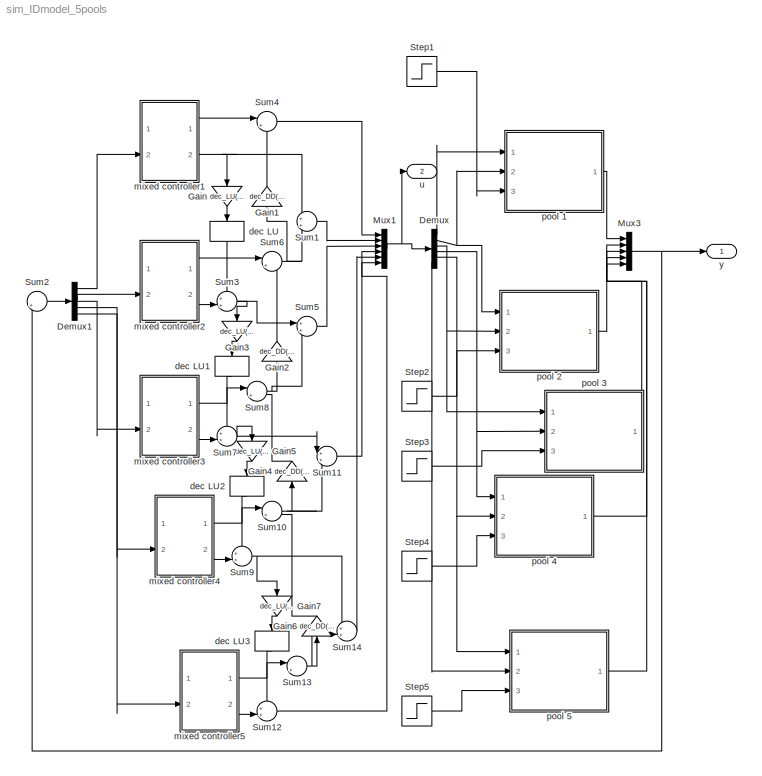
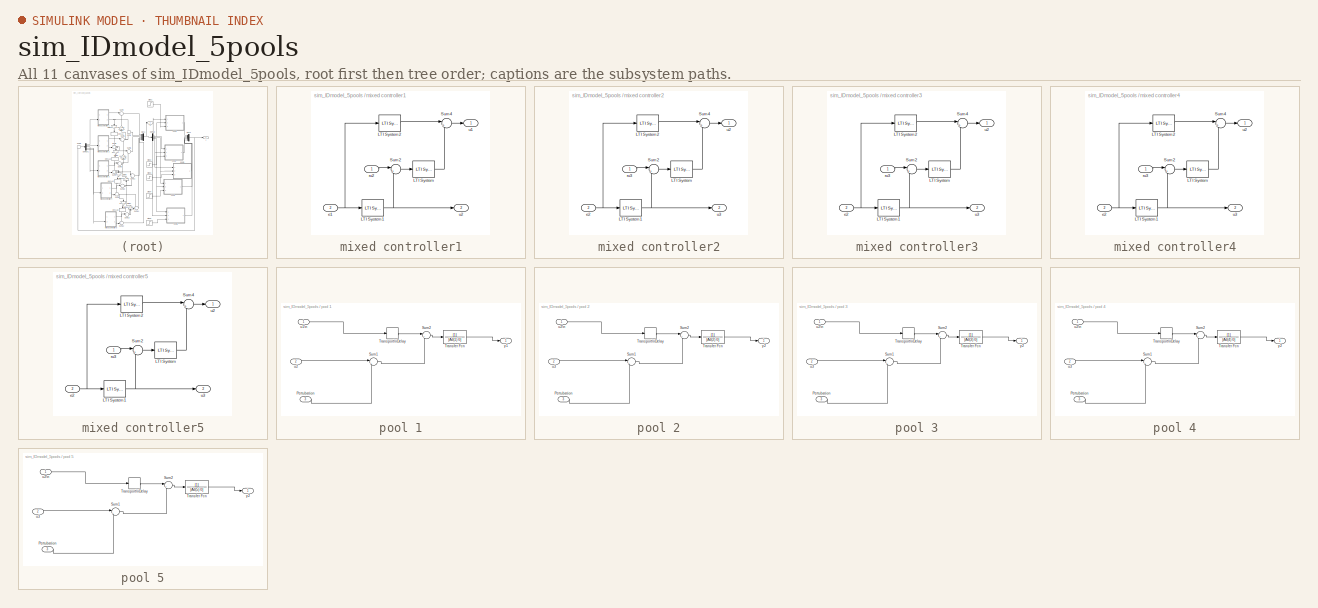
[diagram: thumbnail index - all 11 canvases of the model, root first then tree order]
MODEL sim_IDmodel_5pools
KIND model
BLOCK [Demux] Demux
  DisplayOption = bar
  Outputs = 6
  Ports = [1, 6]
BLOCK [Demux] Demux1
  DisplayOption = bar
  Outputs = 5
  Ports = [1, 5]
BLOCK [Gain] Gain
  Gain = dec_LU(1)
  OutDataTypeMode = Inherit via internal rule
  ParameterDataTypeMode = Inherit via internal rule
  SaturateOnIntegerOverflow = off
BLOCK [Gain] Gain1
  Gain = dec_DD(1)
  OutDataTypeMode = Inherit via internal rule
  ParameterDataTypeMode = Inherit via internal rule
  SaturateOnIntegerOverflow = off
BLOCK [Gain] Gain2
  Gain = dec_DD(2)
  OutDataTypeMode = Inherit via internal rule
  ParameterDataTypeMode = Inherit via internal rule
  SaturateOnIntegerOverflow = off
BLOCK [Gain] Gain3
  Gain = dec_LU(2)
  OutDataTypeMode = Inherit via internal rule
  ParameterDataTypeMode = Inherit via internal rule
  SaturateOnIntegerOverflow = off
BLOCK [Gain] Gain4
  Gain = dec_DD(3)
  OutDataTypeMode = Inherit via internal rule
  ParameterDataTypeMode = Inherit via internal rule
  SaturateOnIntegerOverflow = off
BLOCK [Gain] Gain5
  Gain = dec_LU(3)
  OutDataTypeMode = Inherit via internal rule
  ParameterDataTypeMode = Inherit via internal rule
  SaturateOnIntegerOverflow = off
BLOCK [Gain] Gain6
  Gain = dec_DD(4)
  OutDataTypeMode = Inherit via internal rule
  ParameterDataTypeMode = Inherit via internal rule
  SaturateOnIntegerOverflow = off
BLOCK [Gain] Gain7
  Gain = dec_LU(4)
  OutDataTypeMode = Inherit via internal rule
  ParameterDataTypeMode = Inherit via internal rule
  SaturateOnIntegerOverflow = off
BLOCK [Mux] Mux1
  DisplayOption = bar
  Inputs = 6
  Ports = [6, 1]
BLOCK [Mux] Mux3
  DisplayOption = bar
  Inputs = 5
  Ports = [5, 1]
BLOCK [Step] Step1
  SampleTime = 0
  Time = t_step1
BLOCK [Step] Step2
  SampleTime = 0
  Time = t_step2
BLOCK [Step] Step3
  SampleTime = 0
  Time = t_step3
BLOCK [Step] Step4
  SampleTime = 0
  Time = t_step4
BLOCK [Step] Step5
  SampleTime = 0
  Time = t_step5
BLOCK [Sum] Sum1
  IconShape = round
  Ports = [2, 1]
BLOCK [Sum] Sum10
  IconShape = round
  Inputs = |++
  Ports = [2, 1]
BLOCK [Sum] Sum11
  IconShape = round
  Ports = [2, 1]
BLOCK [Sum] Sum12
  IconShape = round
  Inputs = ++|
  Ports = [2, 1]
BLOCK [Sum] Sum13
  IconShape = round
  Inputs = |++
  Ports = [2, 1]
BLOCK [Sum] Sum14
  IconShape = round
  Ports = [2, 1]
BLOCK [Sum] Sum2
  IconShape = round
  Inputs = |+-
  Ports = [2, 1]
BLOCK [Sum] Sum3
  IconShape = round
  Inputs = ++|
  Ports = [2, 1]
BLOCK [Sum] Sum4
  IconShape = round
  Inputs = |++
  Ports = [2, 1]
BLOCK [Sum] Sum5
  IconShape = round
  Ports = [2, 1]
BLOCK [Sum] Sum6
  IconShape = round
  Inputs = |++
  Ports = [2, 1]
BLOCK [Sum] Sum7
  IconShape = round
  Inputs = ++|
  Ports = [2, 1]
BLOCK [Sum] Sum8
  IconShape = round
  Inputs = |++
  Ports = [2, 1]
BLOCK [Sum] Sum9
  IconShape = round
  Inputs = ++|
  Ports = [2, 1]
BLOCK [TransportDelay] dec LU
  DelayTime = tau(2)
BLOCK [TransportDelay] dec LU1
  DelayTime = tau(3)
BLOCK [TransportDelay] dec LU2
  DelayTime = tau(4)
BLOCK [TransportDelay] dec LU3
  DelayTime = tau(5)
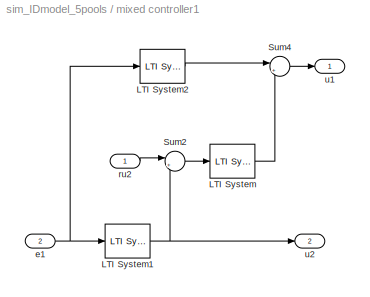
BLOCK [SubSystem] mixed controller1
  MaskHideContents = off
  MinAlgLoopOccurrences = off
  Ports = [2, 2]
  RTWSystemCode = Auto
  TreatAsAtomicUnit = off
BLOCK [Reference] mixed controller1/LTI System  REF=cstblocks/LTI System
  IC = []
  Ports = [1, 1]
  ShowPortLabels = on
  SourceBlock = cstblocks/LTI System
  SourceType = LTI Block
  sys = K1b(1)
BLOCK [Reference] mixed controller1/LTI System1  REF=cstblocks/LTI System
  IC = []
  Ports = [1, 1]
  ShowPortLabels = on
  SourceBlock = cstblocks/LTI System
  SourceType = LTI Block
  sys = K2(1)
BLOCK [Reference] mixed controller1/LTI System2  REF=cstblocks/LTI System
  IC = []
  Ports = [1, 1]
  ShowPortLabels = on
  SourceBlock = cstblocks/LTI System
  SourceType = LTI Block
  sys = K1(1)
BLOCK [Sum] mixed controller1/Sum2
  IconShape = round
  Inputs = |+-
  Ports = [2, 1]
BLOCK [Sum] mixed controller1/Sum4
  IconShape = round
  Inputs = |++
  Ports = [2, 1]
BLOCK [Inport] mixed controller1/e1
  IconDisplay = Port number
  Port = 2
BLOCK [Inport] mixed controller1/ru2
  IconDisplay = Port number
BLOCK [Outport] mixed controller1/u1
  BusOutputAsStruct = off
  IconDisplay = Port number
BLOCK [Outport] mixed controller1/u2
  BusOutputAsStruct = off
  IconDisplay = Port number
  Port = 2
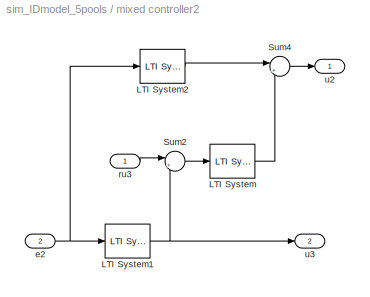
BLOCK [SubSystem] mixed controller2
  MaskHideContents = off
  MinAlgLoopOccurrences = off
  Ports = [2, 2]
  RTWSystemCode = Auto
  TreatAsAtomicUnit = off
BLOCK [Reference] mixed controller2/LTI System  REF=cstblocks/LTI System
  IC = []
  Ports = [1, 1]
  ShowPortLabels = on
  SourceBlock = cstblocks/LTI System
  SourceType = LTI Block
  sys = K1b(2)
BLOCK [Reference] mixed controller2/LTI System1  REF=cstblocks/LTI System
  IC = []
  Ports = [1, 1]
  ShowPortLabels = on
  SourceBlock = cstblocks/LTI System
  SourceType = LTI Block
  sys = K2(2)
BLOCK [Reference] mixed controller2/LTI System2  REF=cstblocks/LTI System
  IC = []
  Ports = [1, 1]
  ShowPortLabels = on
  SourceBlock = cstblocks/LTI System
  SourceType = LTI Block
  sys = K1(2)
BLOCK [Sum] mixed controller2/Sum2
  IconShape = round
  Inputs = |+-
  Ports = [2, 1]
BLOCK [Sum] mixed controller2/Sum4
  IconShape = round
  Inputs = |++
  Ports = [2, 1]
BLOCK [Inport] mixed controller2/e2
  IconDisplay = Port number
  Port = 2
BLOCK [Inport] mixed controller2/ru3
  IconDisplay = Port number
BLOCK [Outport] mixed controller2/u2
  BusOutputAsStruct = off
  IconDisplay = Port number
BLOCK [Outport] mixed controller2/u3
  BusOutputAsStruct = off
  IconDisplay = Port number
  Port = 2
BLOCK [SubSystem] mixed controller3
  MaskHideContents = off
  MinAlgLoopOccurrences = off
  Ports = [2, 2]
  RTWSystemCode = Auto
  TreatAsAtomicUnit = off
BLOCK [Reference] mixed controller3/LTI System  REF=cstblocks/LTI System
  IC = []
  Ports = [1, 1]
  ShowPortLabels = on
  SourceBlock = cstblocks/LTI System
  SourceType = LTI Block
  sys = K1b(3)
BLOCK [Reference] mixed controller3/LTI System1  REF=cstblocks/LTI System
  IC = []
  Ports = [1, 1]
  ShowPortLabels = on
  SourceBlock = cstblocks/LTI System
  SourceType = LTI Block
  sys = K2(3)
BLOCK [Reference] mixed controller3/LTI System2  REF=cstblocks/LTI System
  IC = []
  Ports = [1, 1]
  ShowPortLabels = on
  SourceBlock = cstblocks/LTI System
  SourceType = LTI Block
  sys = K1(3)
BLOCK [Sum] mixed controller3/Sum2
  IconShape = round
  Inputs = |+-
  Ports = [2, 1]
BLOCK [Sum] mixed controller3/Sum4
  IconShape = round
  Inputs = |++
  Ports = [2, 1]
BLOCK [Inport] mixed controller3/e2
  IconDisplay = Port number
  Port = 2
BLOCK [Inport] mixed controller3/ru3
  IconDisplay = Port number
BLOCK [Outport] mixed controller3/u2
  BusOutputAsStruct = off
  IconDisplay = Port number
BLOCK [Outport] mixed controller3/u3
  BusOutputAsStruct = off
  IconDisplay = Port number
  Port = 2
BLOCK [SubSystem] mixed controller4
  MaskHideContents = off
  MinAlgLoopOccurrences = off
  Ports = [2, 2]
  RTWSystemCode = Auto
  TreatAsAtomicUnit = off
BLOCK [Reference] mixed controller4/LTI System  REF=cstblocks/LTI System
  IC = []
  Ports = [1, 1]
  ShowPortLabels = on
  SourceBlock = cstblocks/LTI System
  SourceType = LTI Block
  sys = K1b(4)
BLOCK [Reference] mixed controller4/LTI System1  REF=cstblocks/LTI System
  IC = []
  Ports = [1, 1]
  ShowPortLabels = on
  SourceBlock = cstblocks/LTI System
  SourceType = LTI Block
  sys = K2(4)
BLOCK [Reference] mixed controller4/LTI System2  REF=cstblocks/LTI System
  IC = []
  Ports = [1, 1]
  ShowPortLabels = on
  SourceBlock = cstblocks/LTI System
  SourceType = LTI Block
  sys = K1(4)
BLOCK [Sum] mixed controller4/Sum2
  IconShape = round
  Inputs = |+-
  Ports = [2, 1]
BLOCK [Sum] mixed controller4/Sum4
  IconShape = round
  Inputs = |++
  Ports = [2, 1]
BLOCK [Inport] mixed controller4/e2
  IconDisplay = Port number
  Port = 2
BLOCK [Inport] mixed controller4/ru3
  IconDisplay = Port number
BLOCK [Outport] mixed controller4/u2
  BusOutputAsStruct = off
  IconDisplay = Port number
BLOCK [Outport] mixed controller4/u3
  BusOutputAsStruct = off
  IconDisplay = Port number
  Port = 2
BLOCK [SubSystem] mixed controller5
  MaskHideContents = off
  MinAlgLoopOccurrences = off
  Ports = [2, 2]
  RTWSystemCode = Auto
  TreatAsAtomicUnit = off
BLOCK [Reference] mixed controller5/LTI System  REF=cstblocks/LTI System
  IC = []
  Ports = [1, 1]
  ShowPortLabels = on
  SourceBlock = cstblocks/LTI System
  SourceType = LTI Block
  sys = K1b(5)
BLOCK [Reference] mixed controller5/LTI System1  REF=cstblocks/LTI System
  IC = []
  Ports = [1, 1]
  ShowPortLabels = on
  SourceBlock = cstblocks/LTI System
  SourceType = LTI Block
  sys = K2(5)
BLOCK [Reference] mixed controller5/LTI System2  REF=cstblocks/LTI System
  IC = []
  Ports = [1, 1]
  ShowPortLabels = on
  SourceBlock = cstblocks/LTI System
  SourceType = LTI Block
  sys = K1(5)
BLOCK [Sum] mixed controller5/Sum2
  IconShape = round
  Inputs = |+-
  Ports = [2, 1]
BLOCK [Sum] mixed controller5/Sum4
  IconShape = round
  Inputs = |++
  Ports = [2, 1]
BLOCK [Inport] mixed controller5/e2
  IconDisplay = Port number
  Port = 2
BLOCK [Inport] mixed controller5/ru3
  IconDisplay = Port number
BLOCK [Outport] mixed controller5/u2
  BusOutputAsStruct = off
  IconDisplay = Port number
BLOCK [Outport] mixed controller5/u3
  BusOutputAsStruct = off
  IconDisplay = Port number
  Port = 2
BLOCK [SubSystem] pool 1
  MaskHideContents = off
  MinAlgLoopOccurrences = off
  Ports = [3, 1]
  RTWSystemCode = Auto
  TreatAsAtomicUnit = off
BLOCK [Inport] pool 1/Pertubation
  IconDisplay = Port number
  Port = 3
BLOCK [Sum] pool 1/Sum1
  IconShape = round
  Inputs = |++
  Ports = [2, 1]
BLOCK [Sum] pool 1/Sum2
  IconShape = round
  Inputs = |+-
  Ports = [2, 1]
BLOCK [TransferFcn] pool 1/Transfer Fcn
  Denominator = [Ad(1) 0]
BLOCK [TransportDelay] pool 1/Transport\nDelay
  DelayTime = tau(1)
BLOCK [Inport] pool 1/u1\n
  IconDisplay = Port number
BLOCK [Inport] pool 1/u2
  IconDisplay = Port number
  Port = 2
BLOCK [Outport] pool 1/y1
  BusOutputAsStruct = off
  IconDisplay = Port number
BLOCK [SubSystem] pool 2
  MaskHideContents = off
  MinAlgLoopOccurrences = off
  Ports = [3, 1]
  RTWSystemCode = Auto
  TreatAsAtomicUnit = off
BLOCK [Inport] pool 2/Pertubation
  IconDisplay = Port number
  Port = 3
BLOCK [Sum] pool 2/Sum1
  IconShape = round
  Inputs = |++
  Ports = [2, 1]
BLOCK [Sum] pool 2/Sum2
  IconShape = round
  Inputs = |+-
  Ports = [2, 1]
BLOCK [TransferFcn] pool 2/Transfer Fcn
  Denominator = [Ad(2) 0]
BLOCK [TransportDelay] pool 2/Transport\nDelay
  DelayTime = tau(2)
BLOCK [Inport] pool 2/u2\n
  IconDisplay = Port number
BLOCK [Inport] pool 2/u3
  IconDisplay = Port number
  Port = 2
BLOCK [Outport] pool 2/y2
  BusOutputAsStruct = off
  IconDisplay = Port number
BLOCK [SubSystem] pool 3
  MaskHideContents = off
  MinAlgLoopOccurrences = off
  Ports = [3, 1]
  RTWSystemCode = Auto
  TreatAsAtomicUnit = off
BLOCK [Inport] pool 3/Pertubation
  IconDisplay = Port number
  Port = 3
BLOCK [Sum] pool 3/Sum1
  IconShape = round
  Inputs = |++
  Ports = [2, 1]
BLOCK [Sum] pool 3/Sum2
  IconShape = round
  Inputs = |+-
  Ports = [2, 1]
BLOCK [TransferFcn] pool 3/Transfer Fcn
  Denominator = [Ad(3) 0]
BLOCK [TransportDelay] pool 3/Transport\nDelay
  DelayTime = tau(3)
BLOCK [Inport] pool 3/u2\n
  IconDisplay = Port number
BLOCK [Inport] pool 3/u3
  IconDisplay = Port number
  Port = 2
BLOCK [Outport] pool 3/y2
  BusOutputAsStruct = off
  IconDisplay = Port number
BLOCK [SubSystem] pool 4
  MaskHideContents = off
  MinAlgLoopOccurrences = off
  Ports = [3, 1]
  RTWSystemCode = Auto
  TreatAsAtomicUnit = off
BLOCK [Inport] pool 4/Pertubation
  IconDisplay = Port number
  Port = 3
BLOCK [Sum] pool 4/Sum1
  IconShape = round
  Inputs = |++
  Ports = [2, 1]
BLOCK [Sum] pool 4/Sum2
  IconShape = round
  Inputs = |+-
  Ports = [2, 1]
BLOCK [TransferFcn] pool 4/Transfer Fcn
  Denominator = [Ad(4) 0]
BLOCK [TransportDelay] pool 4/Transport\nDelay
  DelayTime = tau(4)
BLOCK [Inport] pool 4/u2\n
  IconDisplay = Port number
BLOCK [Inport] pool 4/u3
  IconDisplay = Port number
  Port = 2
BLOCK [Outport] pool 4/y2
  BusOutputAsStruct = off
  IconDisplay = Port number
BLOCK [SubSystem] pool 5
  MaskHideContents = off
  MinAlgLoopOccurrences = off
  Ports = [3, 1]
  RTWSystemCode = Auto
  TreatAsAtomicUnit = off
BLOCK [Inport] pool 5/Pertubation
  IconDisplay = Port number
  Port = 3
BLOCK [Sum] pool 5/Sum1
  IconShape = round
  Inputs = |++
  Ports = [2, 1]
BLOCK [Sum] pool 5/Sum2
  IconShape = round
  Inputs = |+-
  Ports = [2, 1]
BLOCK [TransferFcn] pool 5/Transfer Fcn
  Denominator = [Ad(5) 0]
BLOCK [TransportDelay] pool 5/Transport\nDelay
  DelayTime = tau(5)
BLOCK [Inport] pool 5/u2\n
  IconDisplay = Port number
BLOCK [Inport] pool 5/u3
  IconDisplay = Port number
  Port = 2
BLOCK [Outport] pool 5/y2
  BusOutputAsStruct = off
  IconDisplay = Port number
BLOCK [Outport] u
  BusOutputAsStruct = off
  IconDisplay = Port number
  Port = 2
BLOCK [Outport] y
  BusOutputAsStruct = off
  IconDisplay = Port number
LINE Demux1:1 -> mixed controller1:2
LINE Demux1:2 -> mixed controller2:2
LINE Demux1:3 -> mixed controller3:2
LINE Demux1:4 -> mixed controller4:2
LINE Demux1:5 -> mixed controller5:2
LINE Demux:1 -> pool 1:1
NET Demux:2 -> pool 1:2, pool 2:1
NET Demux:3 -> pool 2:2, pool 3:1
NET Demux:4 -> pool 3:2, pool 4:1
NET Demux:5 -> pool 4:2, pool 5:1
LINE Demux:6 -> pool 5:2
LINE Gain1:1 -> Sum4:2
LINE Gain2:1 -> Sum6:2
LINE Gain3:1 -> dec LU1:1
LINE Gain4:1 -> Sum8:2
LINE Gain5:1 -> dec LU2:1
LINE Gain6:1 -> Sum10:2
LINE Gain7:1 -> dec LU3:1
LINE Gain:1 -> dec LU:1
NET Mux1:1 -> Demux:1, u:1
NET Mux3:1 -> Sum2:2, y:1
LINE Step1:1 -> pool 1:3
LINE Step2:1 -> pool 2:3
LINE Step3:1 -> pool 3:3
LINE Step4:1 -> pool 4:3
LINE Step5:1 -> pool 5:3
NET Sum10:1 -> Gain4:1, Sum11:2
LINE Sum11:1 -> Mux1:4
LINE Sum12:1 -> Mux1:6
NET Sum13:1 -> Gain6:1, Sum14:2
LINE Sum14:1 -> Mux1:5
LINE Sum1:1 -> Mux1:2
LINE Sum2:1 -> Demux1:1
NET Sum3:1 -> Gain3:1, Sum5:1
LINE Sum4:1 -> Mux1:1
LINE Sum5:1 -> Mux1:3
NET Sum6:1 -> Gain1:1, Sum1:2
NET Sum7:1 -> Gain5:1, Sum11:1
NET Sum8:1 -> Gain2:1, Sum5:2
NET Sum9:1 -> Gain7:1, Sum14:1
LINE dec LU1:1 -> Sum7:1
LINE dec LU2:1 -> Sum9:1
LINE dec LU3:1 -> Sum12:1
LINE dec LU:1 -> Sum3:1
NET mixed controller1/LTI System1:1 -> mixed controller1/Sum2:2, mixed controller1/u2:1
LINE mixed controller1/LTI System2:1 -> mixed controller1/Sum4:1
LINE mixed controller1/LTI System:1 -> mixed controller1/Sum4:2
LINE mixed controller1/Sum2:1 -> mixed controller1/LTI System:1
LINE mixed controller1/Sum4:1 -> mixed controller1/u1:1
NET mixed controller1/e1:1 -> mixed controller1/LTI System1:1, mixed controller1/LTI System2:1
LINE mixed controller1/ru2:1 -> mixed controller1/Sum2:1
LINE mixed controller1:1 -> Sum4:1
NET mixed controller1:2 -> Gain:1, Sum1:1
NET mixed controller2/LTI System1:1 -> mixed controller2/Sum2:2, mixed controller2/u3:1
LINE mixed controller2/LTI System2:1 -> mixed controller2/Sum4:1
LINE mixed controller2/LTI System:1 -> mixed controller2/Sum4:2
LINE mixed controller2/Sum2:1 -> mixed controller2/LTI System:1
LINE mixed controller2/Sum4:1 -> mixed controller2/u2:1
NET mixed controller2/e2:1 -> mixed controller2/LTI System1:1, mixed controller2/LTI System2:1
LINE mixed controller2/ru3:1 -> mixed controller2/Sum2:1
LINE mixed controller2:1 -> Sum6:1
LINE mixed controller2:2 -> Sum3:2
NET mixed controller3/LTI System1:1 -> mixed controller3/Sum2:2, mixed controller3/u3:1
LINE mixed controller3/LTI System2:1 -> mixed controller3/Sum4:1
LINE mixed controller3/LTI System:1 -> mixed controller3/Sum4:2
LINE mixed controller3/Sum2:1 -> mixed controller3/LTI System:1
LINE mixed controller3/Sum4:1 -> mixed controller3/u2:1
NET mixed controller3/e2:1 -> mixed controller3/LTI System1:1, mixed controller3/LTI System2:1
LINE mixed controller3/ru3:1 -> mixed controller3/Sum2:1
LINE mixed controller3:1 -> Sum8:1
LINE mixed controller3:2 -> Sum7:2
NET mixed controller4/LTI System1:1 -> mixed controller4/Sum2:2, mixed controller4/u3:1
LINE mixed controller4/LTI System2:1 -> mixed controller4/Sum4:1
LINE mixed controller4/LTI System:1 -> mixed controller4/Sum4:2
LINE mixed controller4/Sum2:1 -> mixed controller4/LTI System:1
LINE mixed controller4/Sum4:1 -> mixed controller4/u2:1
NET mixed controller4/e2:1 -> mixed controller4/LTI System1:1, mixed controller4/LTI System2:1
LINE mixed controller4/ru3:1 -> mixed controller4/Sum2:1
LINE mixed controller4:1 -> Sum10:1
LINE mixed controller4:2 -> Sum9:2
NET mixed controller5/LTI System1:1 -> mixed controller5/Sum2:2, mixed controller5/u3:1
LINE mixed controller5/LTI System2:1 -> mixed controller5/Sum4:1
LINE mixed controller5/LTI System:1 -> mixed controller5/Sum4:2
LINE mixed controller5/Sum2:1 -> mixed controller5/LTI System:1
LINE mixed controller5/Sum4:1 -> mixed controller5/u2:1
NET mixed controller5/e2:1 -> mixed controller5/LTI System1:1, mixed controller5/LTI System2:1
LINE mixed controller5/ru3:1 -> mixed controller5/Sum2:1
LINE mixed controller5:1 -> Sum13:1
LINE mixed controller5:2 -> Sum12:2
LINE pool 1/Pertubation:1 -> pool 1/Sum1:2
LINE pool 1/Sum1:1 -> pool 1/Sum2:2
LINE pool 1/Sum2:1 -> pool 1/Transfer Fcn:1
LINE pool 1/Transfer Fcn:1 -> pool 1/y1:1
LINE pool 1/Transport\nDelay:1 -> pool 1/Sum2:1
LINE pool 1/u1\n:1 -> pool 1/Transport\nDelay:1
LINE pool 1/u2:1 -> pool 1/Sum1:1
LINE pool 1:1 -> Mux3:1
LINE pool 2/Pertubation:1 -> pool 2/Sum1:2
LINE pool 2/Sum1:1 -> pool 2/Sum2:2
LINE pool 2/Sum2:1 -> pool 2/Transfer Fcn:1
LINE pool 2/Transfer Fcn:1 -> pool 2/y2:1
LINE pool 2/Transport\nDelay:1 -> pool 2/Sum2:1
LINE pool 2/u2\n:1 -> pool 2/Transport\nDelay:1
LINE pool 2/u3:1 -> pool 2/Sum1:1
LINE pool 2:1 -> Mux3:2
LINE pool 3/Pertubation:1 -> pool 3/Sum1:2
LINE pool 3/Sum1:1 -> pool 3/Sum2:2
LINE pool 3/Sum2:1 -> pool 3/Transfer Fcn:1
LINE pool 3/Transfer Fcn:1 -> pool 3/y2:1
LINE pool 3/Transport\nDelay:1 -> pool 3/Sum2:1
LINE pool 3/u2\n:1 -> pool 3/Transport\nDelay:1
LINE pool 3/u3:1 -> pool 3/Sum1:1
LINE pool 3:1 -> Mux3:3
LINE pool 4/Pertubation:1 -> pool 4/Sum1:2
LINE pool 4/Sum1:1 -> pool 4/Sum2:2
LINE pool 4/Sum2:1 -> pool 4/Transfer Fcn:1
LINE pool 4/Transfer Fcn:1 -> pool 4/y2:1
LINE pool 4/Transport\nDelay:1 -> pool 4/Sum2:1
LINE pool 4/u2\n:1 -> pool 4/Transport\nDelay:1
LINE pool 4/u3:1 -> pool 4/Sum1:1
LINE pool 4:1 -> Mux3:4
LINE pool 5/Pertubation:1 -> pool 5/Sum1:2
LINE pool 5/Sum1:1 -> pool 5/Sum2:2
LINE pool 5/Sum2:1 -> pool 5/Transfer Fcn:1
LINE pool 5/Transfer Fcn:1 -> pool 5/y2:1
LINE pool 5/Transport\nDelay:1 -> pool 5/Sum2:1
LINE pool 5/u2\n:1 -> pool 5/Transport\nDelay:1
LINE pool 5/u3:1 -> pool 5/Sum1:1
LINE pool 5:1 -> Mux3:5
note: NET lines group one-source signal fan-out (src -> all destinations, sorted); 1:1 wires keep LINE
